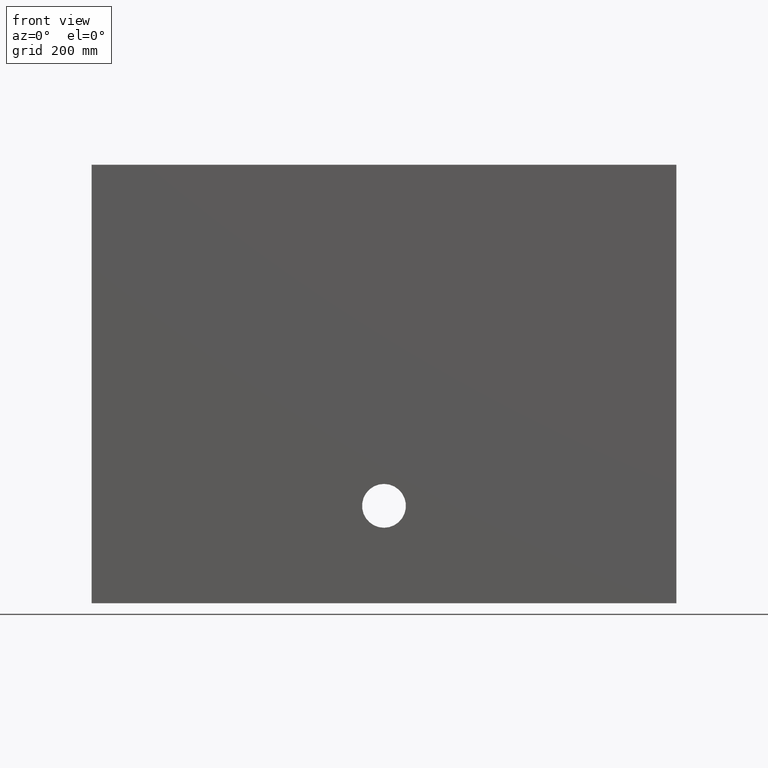
[diagram: clean part render]
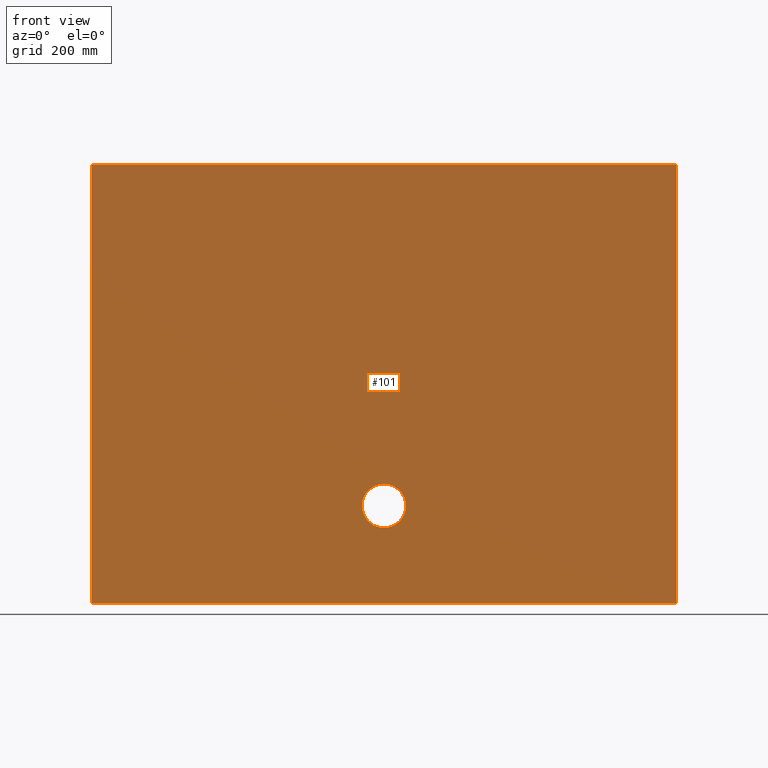
[diagram: same view with one face highlighted and labeled with its STEP entity id]
A machine part, front view. The second image highlights one B-rep face of the part: STEP entity #101.
In plain terms, the highlighted planar face has unit normal (0, 1, 0).
Its self-contained STEP definition (entity closure, byte-faithful):
#36 = AXIS2_PLACEMENT_3D ( 'NONE', #564, #368, #785 ) ;
#46 = VERTEX_POINT ( 'NONE', #532 ) ;
#71 = DIRECTION ( 'NONE',  ( 0.0000000000000000000, 0.0000000000000000000, 1.000000000000000000 ) ) ;
#87 = AXIS2_PLACEMENT_3D ( 'NONE', #702, #172, #340 ) ;
#101 = ADVANCED_FACE ( 'NONE', ( #400, #943 ), #181, .F. ) ;
#108 = CARTESIAN_POINT ( 'NONE',  ( -599.9999999999998900, 0.0000000000000000000, 449.9999999999999400 ) ) ;
#110 = DIRECTION ( 'NONE',  ( 0.0000000000000000000, 0.0000000000000000000, 1.000000000000000000 ) ) ;
#127 = LINE ( 'NONE', #186, #640 ) ;
#137 = CARTESIAN_POINT ( 'NONE',  ( -599.9999999999998900, 0.0000000000000000000, -450.0000000000000600 ) ) ;
#143 = CARTESIAN_POINT ( 'NONE',  ( -599.9999999999998900, 0.0000000000000000000, 449.9999999999999400 ) ) ;
#146 = CARTESIAN_POINT ( 'NONE',  ( 599.9999999999998900, 0.0000000000000000000, 449.9999999999999400 ) ) ;
#172 = DIRECTION ( 'NONE',  ( 0.0000000000000000000, 1.000000000000000000, 0.0000000000000000000 ) ) ;
#181 = PLANE ( 'NONE',  #36 ) ;
#186 = CARTESIAN_POINT ( 'NONE',  ( -599.9999999999998900, 0.0000000000000000000, -450.0000000000000600 ) ) ;
#203 = CIRCLE ( 'NONE', #405, 44.99999999999995700 ) ;
#213 = EDGE_CURVE ( 'NONE', #46, #714, #203, .T. ) ;
#218 = CARTESIAN_POINT ( 'NONE',  ( 1.110223024625156500E-013, 0.0000000000000000000, -250.0000000000000600 ) ) ;
#246 = LINE ( 'NONE', #309, #551 ) ;
#279 = VERTEX_POINT ( 'NONE', #146 ) ;
#309 = CARTESIAN_POINT ( 'NONE',  ( 600.0000000000001100, 0.0000000000000000000, -450.0000000000000600 ) ) ;
#336 = CARTESIAN_POINT ( 'NONE',  ( 600.0000000000001100, 0.0000000000000000000, -450.0000000000000600 ) ) ;
#340 = DIRECTION ( 'NONE',  ( 0.0000000000000000000, 0.0000000000000000000, 1.000000000000000000 ) ) ;
#342 = ORIENTED_EDGE ( 'NONE', *, *, #213, .T. ) ;
#348 = VERTEX_POINT ( 'NONE', #336 ) ;
#368 = DIRECTION ( 'NONE',  ( 0.0000000000000000000, 1.000000000000000000, 0.0000000000000000000 ) ) ;
#370 = DIRECTION ( 'NONE',  ( -1.000000000000000000, -0.0000000000000000000, -0.0000000000000000000 ) ) ;
#381 = VECTOR ( 'NONE', #110, 1000.000000000000000 ) ;
#400 = FACE_BOUND ( 'NONE', #826, .T. ) ;
#405 = AXIS2_PLACEMENT_3D ( 'NONE', #218, #922, #71 ) ;
#463 = EDGE_CURVE ( 'NONE', #936, #279, #522, .T. ) ;
#471 = EDGE_LOOP ( 'NONE', ( #947, #735, #962, #700 ) ) ;
#492 = VECTOR ( 'NONE', #649, 1000.000000000000000 ) ;
#522 = LINE ( 'NONE', #143, #492 ) ;
#527 = EDGE_CURVE ( 'NONE', #348, #675, #127, .T. ) ;
#532 = CARTESIAN_POINT ( 'NONE',  ( 1.110223024625156500E-013, 0.0000000000000000000, -205.0000000000000900 ) ) ;
#547 = EDGE_CURVE ( 'NONE', #714, #46, #892, .T. ) ;
#551 = VECTOR ( 'NONE', #610, 1000.000000000000000 ) ;
#564 = CARTESIAN_POINT ( 'NONE',  ( -599.9999999999998900, 0.0000000000000000000, 449.9999999999999400 ) ) ;
#598 = ORIENTED_EDGE ( 'NONE', *, *, #547, .T. ) ;
#610 = DIRECTION ( 'NONE',  ( 2.467162276944792400E-016, -0.0000000000000000000, -1.000000000000000000 ) ) ;
#627 = EDGE_CURVE ( 'NONE', #279, #348, #246, .T. ) ;
#640 = VECTOR ( 'NONE', #370, 1000.000000000000000 ) ;
#649 = DIRECTION ( 'NONE',  ( 1.000000000000000000, 0.0000000000000000000, 0.0000000000000000000 ) ) ;
#675 = VERTEX_POINT ( 'NONE', #724 ) ;
#693 = CARTESIAN_POINT ( 'NONE',  ( 1.165332130586787400E-013, 0.0000000000000000000, -295.0000000000000600 ) ) ;
#700 = ORIENTED_EDGE ( 'NONE', *, *, #463, .F. ) ;
#702 = CARTESIAN_POINT ( 'NONE',  ( 1.110223024625156500E-013, 0.0000000000000000000, -250.0000000000000600 ) ) ;
#714 = VERTEX_POINT ( 'NONE', #693 ) ;
#724 = CARTESIAN_POINT ( 'NONE',  ( -599.9999999999998900, 0.0000000000000000000, -450.0000000000000600 ) ) ;
#735 = ORIENTED_EDGE ( 'NONE', *, *, #527, .F. ) ;
#767 = LINE ( 'NONE', #137, #381 ) ;
#785 = DIRECTION ( 'NONE',  ( 0.0000000000000000000, -0.0000000000000000000, 1.000000000000000000 ) ) ;
#826 = EDGE_LOOP ( 'NONE', ( #342, #598 ) ) ;
#892 = CIRCLE ( 'NONE', #87, 44.99999999999995700 ) ;
#907 = EDGE_CURVE ( 'NONE', #675, #936, #767, .T. ) ;
#922 = DIRECTION ( 'NONE',  ( 0.0000000000000000000, 1.000000000000000000, 0.0000000000000000000 ) ) ;
#936 = VERTEX_POINT ( 'NONE', #108 ) ;
#943 = FACE_OUTER_BOUND ( 'NONE', #471, .T. ) ;
#947 = ORIENTED_EDGE ( 'NONE', *, *, #907, .F. ) ;
#962 = ORIENTED_EDGE ( 'NONE', *, *, #627, .F. ) ;